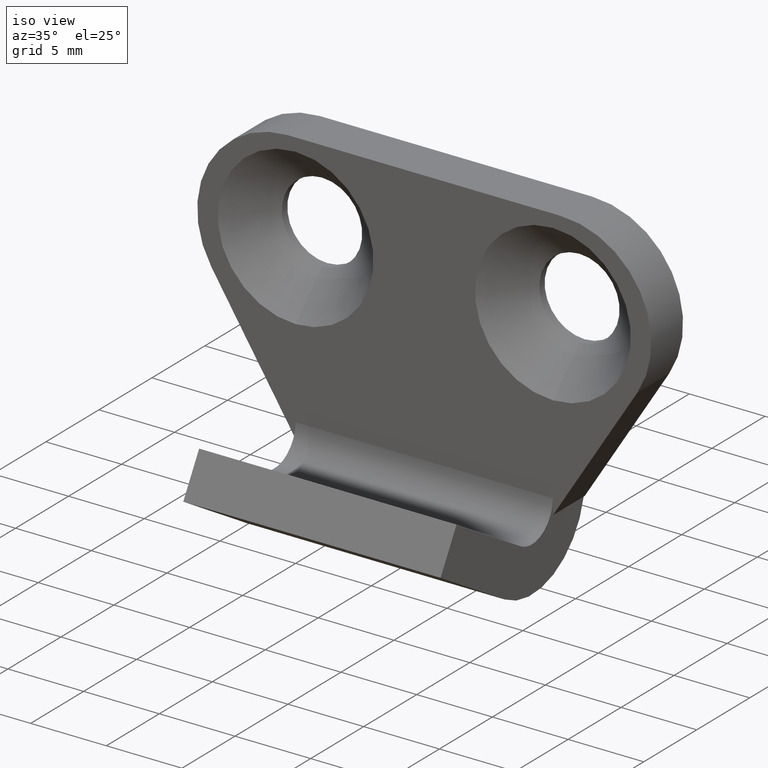
[diagram: clean part render]
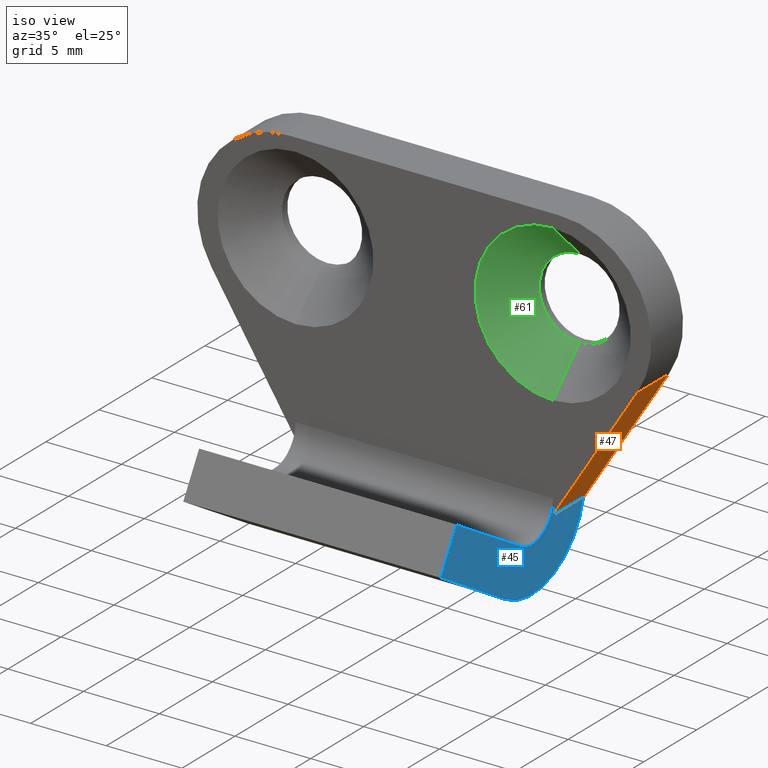
[diagram: same view with three faces highlighted in distinct colors, each labeled with its STEP entity id]
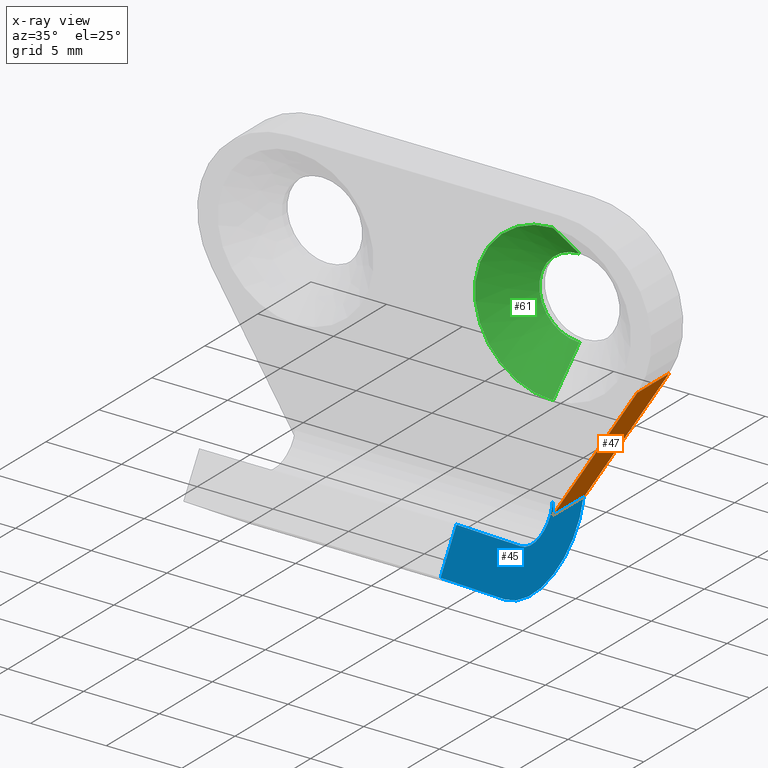
[diagram: x-ray of the same camera — body ghosted, the three highlighted faces saturated]
A machine part, iso view with three faces highlighted in distinct colors.
The next image is the same camera in x-ray (body ghosted, the three faces saturated) — at least one of them is partly hidden behind the body in this view.
Their STEP definitions:

[orange] entity #47 — the highlighted planar face has unit normal (-0.8447, 0, 0.5352).
#47=ADVANCED_FACE('',(#137),#136,.F.);
#136=PLANE('',#348);
#137=FACE_OUTER_BOUND('',#349,.T.);
#345=CARTESIAN_POINT('',(7.94316362310E+00,-3.00000000000E-01,-1.28788818178E+01));
#346=DIRECTION('',(-8.44727294833E-01,0.00000000000E+00,5.35196970623E-01));
#347=DIRECTION('',(5.35196970623E-01,0.00000000000E+00,8.44727294833E-01));
#348=AXIS2_PLACEMENT_3D('',#345,#346,#347);
#349=EDGE_LOOP('',(#498,#499,#500,#501,#502));
#498=ORIENTED_EDGE('',*,*,#588,.T.);
#499=ORIENTED_EDGE('',*,*,#600,.F.);
#500=ORIENTED_EDGE('',*,*,#604,.F.);
#501=ORIENTED_EDGE('',*,*,#605,.F.);
#502=ORIENTED_EDGE('',*,*,#606,.T.);
#588=EDGE_CURVE('',#719,#712,#720,.T.);
#600=EDGE_CURVE('',#800,#712,#801,.T.);
#604=EDGE_CURVE('',#826,#800,#827,.T.);
#605=EDGE_CURVE('',#833,#826,#834,.T.);
#606=EDGE_CURVE('',#833,#719,#840,.T.);
#712=VERTEX_POINT('',#1080);
#719=VERTEX_POINT('',#1084);
#720=LINE('',#1085,#1086);
#800=VERTEX_POINT('',#1134);
#801=LINE('',#1135,#1136);
#826=VERTEX_POINT('',#1150);
#827=LINE('',#1151,#1152);
#833=VERTEX_POINT('',#1154);
#834=LINE('',#1155,#1156);
#840=LINE('',#1158,#1159);
#1080=CARTESIAN_POINT('',(8.50000000000E+00,0.00000000000E+00,-1.20000000002E+01));
#1084=CARTESIAN_POINT('',(1.40683637690E+01,0.00000000000E+00,-3.21118182400E+00));
#1085=CARTESIAN_POINT('',(1.40683637690E+01,0.00000000000E+00,-3.21118182400E+00));
#1086=VECTOR('',#1087,1.04043260232E+01);
#1087=DIRECTION('',(-5.35196970623E-01,0.00000000000E+00,-8.44727294833E-01));
#1134=CARTESIAN_POINT('',(8.50000000000E+00,2.89897948553E+00,-1.20000000002E+01));
#1135=CARTESIAN_POINT('',(8.50000000000E+00,2.89897948553E+00,-1.20000000002E+01));
#1136=VECTOR('',#1137,2.89897948553E+00);
#1137=DIRECTION('',(0.00000000000E+00,-1.00000000000E+00,0.00000000000E+00));
#1150=CARTESIAN_POINT('',(8.50000000000E+00,3.00000000000E+00,-1.20000000002E+01));
#1151=CARTESIAN_POINT('',(8.50000000000E+00,3.00000000000E+00,-1.20000000002E+01));
#1152=VECTOR('',#1153,1.01020514466E-01);
#1153=DIRECTION('',(0.00000000000E+00,-1.00000000000E+00,0.00000000000E+00));
#1154=CARTESIAN_POINT('',(1.40683637690E+01,3.00000000000E+00,-3.21118182400E+00));
#1155=CARTESIAN_POINT('',(1.40683637690E+01,3.00000000000E+00,-3.21118182400E+00));
#1156=VECTOR('',#1157,1.04043260232E+01);
#1157=DIRECTION('',(-5.35196970623E-01,0.00000000000E+00,-8.44727294833E-01));
#1158=CARTESIAN_POINT('',(1.40683637690E+01,3.00000000000E+00,-3.21118182400E+00));
#1159=VECTOR('',#1160,3.00000000000E+00);
#1160=DIRECTION('',(0.00000000000E+00,-1.00000000000E+00,0.00000000000E+00));

[blue] entity #45 — the highlighted planar face has unit normal (1, 0, -0).
#45=ADVANCED_FACE('',(#117),#116,.T.);
#116=PLANE('',#338);
#117=FACE_OUTER_BOUND('',#339,.T.);
#335=CARTESIAN_POINT('',(8.50000000000E+00,-1.19498979486E+01,-8.12017425339E+00));
#336=DIRECTION('',(1.00000000000E+00,0.00000000000E+00,-0.00000000000E+00));
#337=DIRECTION('',(-0.00000000000E+00,0.00000000000E+00,-1.00000000000E+00));
#338=AXIS2_PLACEMENT_3D('',#335,#336,#337);
#339=EDGE_LOOP('',(#484,#485,#486,#487,#488,#489,#490));
#484=ORIENTED_EDGE('',*,*,#600,.T.);
#485=ORIENTED_EDGE('',*,*,#587,.T.);
#486=ORIENTED_EDGE('',*,*,#578,.T.);
#487=ORIENTED_EDGE('',*,*,#582,.T.);
#488=ORIENTED_EDGE('',*,*,#596,.T.);
#489=ORIENTED_EDGE('',*,*,#599,.T.);
#490=ORIENTED_EDGE('',*,*,#601,.F.);
#578=EDGE_CURVE('',#651,#644,#652,.T.);
#582=EDGE_CURVE('',#644,#671,#678,.T.);
#587=EDGE_CURVE('',#712,#651,#713,.T.);
#596=EDGE_CURVE('',#671,#767,#774,.T.);
#599=EDGE_CURVE('',#767,#787,#794,.T.);
#600=EDGE_CURVE('',#800,#712,#801,.T.);
#601=EDGE_CURVE('',#800,#787,#807,.T.);
#644=VERTEX_POINT('',#1040);
#651=VERTEX_POINT('',#1044);
#652=CIRCLE('',#1048,2.00000000000E+00);
#671=VERTEX_POINT('',#1056);
#678=LINE('',#1060,#1061);
#712=VERTEX_POINT('',#1080);
#713=LINE('',#1081,#1082);
#767=VERTEX_POINT('',#1116);
#774=LINE('',#1120,#1121);
#787=VERTEX_POINT('',#1127);
#794=LINE('',#1131,#1132);
#800=VERTEX_POINT('',#1134);
#801=LINE('',#1135,#1136);
#807=CIRCLE('',#1141,5.00000000000E+00);
#1040=CARTESIAN_POINT('',(8.50000000000E+00,-3.02324011772E+00,-1.27184235978E+01));
#1044=CARTESIAN_POINT('',(8.50000000000E+00,0.00000000000E+00,-1.10000000000E+01));
#1045=CARTESIAN_POINT('',(8.50000000000E+00,-2.00000000000E+00,-1.10000000000E+01));
#1046=DIRECTION('',(-1.00000000000E+00,-0.00000000000E+00,0.00000000000E+00));
#1047=DIRECTION('',(0.00000000000E+00,-0.00000000000E+00,1.00000000000E+00));
#1048=AXIS2_PLACEMENT_3D('',#1045,#1046,#1047);
#1056=CARTESIAN_POINT('',(8.50000000000E+00,-9.10000000000E+00,-9.10000000000E+00));
#1060=CARTESIAN_POINT('',(8.50000000000E+00,-3.02324011772E+00,-1.27184235978E+01));
#1061=VECTOR('',#1062,7.07248188403E+00);
#1062=DIRECTION('',(0.00000000000E+00,-8.59211798901E-01,5.11620058861E-01));
#1080=CARTESIAN_POINT('',(8.50000000000E+00,0.00000000000E+00,-1.20000000002E+01));
#1081=CARTESIAN_POINT('',(8.50000000000E+00,0.00000000000E+00,-1.20000000002E+01));
#1082=VECTOR('',#1083,1.00000000016E+00);
#1083=DIRECTION('',(0.00000000000E+00,0.00000000000E+00,1.00000000000E+00));
#1116=CARTESIAN_POINT('',(8.50000000000E+00,-1.06000000000E+01,-1.16980762114E+01));
#1120=CARTESIAN_POINT('',(8.50000000000E+00,-9.10000000000E+00,-9.10000000000E+00));
#1121=VECTOR('',#1122,3.00000000000E+00);
#1122=DIRECTION('',(0.00000000000E+00,-5.00000000000E-01,-8.66025403784E-01));
#1127=CARTESIAN_POINT('',(8.50000000000E+00,-4.55826657372E+00,-1.52959599786E+01));
#1131=CARTESIAN_POINT('',(8.50000000000E+00,-1.06000000000E+01,-1.16980762114E+01));
#1132=VECTOR('',#1133,7.03187815572E+00);
#1133=DIRECTION('',(0.00000000000E+00,8.59191995721E-01,-5.11653314744E-01));
#1134=CARTESIAN_POINT('',(8.50000000000E+00,2.89897948553E+00,-1.20000000002E+01));
#1135=CARTESIAN_POINT('',(8.50000000000E+00,2.89897948553E+00,-1.20000000002E+01));
#1136=VECTOR('',#1137,2.89897948553E+00);
#1137=DIRECTION('',(0.00000000000E+00,-1.00000000000E+00,0.00000000000E+00));
#1138=CARTESIAN_POINT('',(8.50000000000E+00,-2.00000000000E+00,-1.10000000000E+01));
#1139=DIRECTION('',(-1.00000000000E+00,-0.00000000000E+00,0.00000000000E+00));
#1140=DIRECTION('',(0.00000000000E+00,-0.00000000000E+00,1.00000000000E+00));
#1141=AXIS2_PLACEMENT_3D('',#1138,#1139,#1140);

[green] entity #61 — the highlighted face is a freeform B-spline surface patch.
#61=ADVANCED_FACE('',(#279),#278,.F.);
#278=( BOUNDED_SURFACE() B_SPLINE_SURFACE( 2,1,((#435,#436),(#437,#438),(#439,#440),(#441,#442),(#443,#444)), .UNSPECIFIED.,.F.,.F.,.F.) B_SPLINE_SURFACE_WITH_KNOTS((3,2,3),(2,2),(0.00000000000E+00,5.00000000000E-01,1.00000000000E+00),(0.00000000000E+00,1.00000000000E+00), .UNSPECIFIED. ) GEOMETRIC_REPRESENTATION_ITEM() RATIONAL_B_SPLINE_SURFACE(((1.00000000000E+00,1.00000000000E+00),(7.07106781187E-01,7.07106781187E-01),(1.00000000000E+00,1.00000000000E+00),(7.07106781187E-01,7.07106781187E-01),(1.00000000000E+00,1.00000000000E+00))) REPRESENTATION_ITEM('') SURFACE() );
#279=FACE_OUTER_BOUND('',#445,.T.);
#435=CARTESIAN_POINT('',(8.50000000000E+00,2.49999999995E+00,2.65000000006E+00));
#436=CARTESIAN_POINT('',(8.50000000000E+00,0.00000000000E+00,5.15000000000E+00));
#437=CARTESIAN_POINT('',(5.84999999994E+00,2.49999999995E+00,2.65000000006E+00));
#438=CARTESIAN_POINT('',(3.35000000000E+00,0.00000000000E+00,5.15000000000E+00));
#439=CARTESIAN_POINT('',(5.84999999994E+00,2.49999999995E+00,1.62265700891E-16));
#440=CARTESIAN_POINT('',(3.35000000000E+00,0.00000000000E+00,-1.46101028862E-15));
#441=CARTESIAN_POINT('',(5.84999999994E+00,2.49999999995E+00,-2.65000000006E+00));
#442=CARTESIAN_POINT('',(3.35000000000E+00,0.00000000000E+00,-5.15000000000E+00));
#443=CARTESIAN_POINT('',(8.50000000000E+00,2.49999999995E+00,-2.65000000006E+00));
#444=CARTESIAN_POINT('',(8.50000000000E+00,0.00000000000E+00,-5.15000000000E+00));
#445=EDGE_LOOP('',(#564,#565,#566,#567));
#564=ORIENTED_EDGE('',*,*,#593,.F.);
#565=ORIENTED_EDGE('',*,*,#631,.F.);
#566=ORIENTED_EDGE('',*,*,#633,.T.);
#567=ORIENTED_EDGE('',*,*,#632,.T.);
#593=EDGE_CURVE('',#747,#746,#754,.T.);
#631=EDGE_CURVE('',#997,#747,#1004,.T.);
#632=EDGE_CURVE('',#996,#746,#1010,.T.);
#633=EDGE_CURVE('',#997,#996,#1016,.T.);
#746=VERTEX_POINT('',#1102);
#747=VERTEX_POINT('',#1103);
#754=CIRCLE('',#1111,5.15000000000E+00);
#996=VERTEX_POINT('',#1248);
#997=VERTEX_POINT('',#1249);
#1004=(BOUNDED_CURVE() B_SPLINE_CURVE(1,(#1254,#1255),.UNSPECIFIED.,.F.,.F.) B_SPLINE_CURVE_WITH_KNOTS((2,2),(0.00000000000E+00,1.00000000000E+00),.UNSPECIFIED.) CURVE() GEOMETRIC_REPRESENTATION_ITEM() RATIONAL_B_SPLINE_CURVE((1.00000000000E+00,1.00000000000E+00)) REPRESENTATION_ITEM('') );
#1010=(BOUNDED_CURVE() B_SPLINE_CURVE(1,(#1256,#1257),.UNSPECIFIED.,.F.,.F.) B_SPLINE_CURVE_WITH_KNOTS((2,2),(0.00000000000E+00,1.00000000000E+00),.UNSPECIFIED.) CURVE() GEOMETRIC_REPRESENTATION_ITEM() RATIONAL_B_SPLINE_CURVE((7.50000000000E-01,7.50000000000E-01)) REPRESENTATION_ITEM('') );
#1016=CIRCLE('',#1261,2.65000000006E+00);
#1102=CARTESIAN_POINT('',(8.50000000000E+00,0.00000000000E+00,5.15000000000E+00));
#1103=CARTESIAN_POINT('',(8.50000000000E+00,0.00000000000E+00,-5.15000000000E+00));
#1108=CARTESIAN_POINT('',(8.50000000000E+00,0.00000000000E+00,0.00000000000E+00));
#1109=DIRECTION('',(0.00000000000E+00,1.00000000000E+00,-0.00000000000E+00));
#1110=DIRECTION('',(-1.22460635382E-16,0.00000000000E+00,1.00000000000E+00));
#1111=AXIS2_PLACEMENT_3D('',#1108,#1109,#1110);
#1248=CARTESIAN_POINT('',(8.50000000000E+00,2.49999999995E+00,2.65000000006E+00));
#1249=CARTESIAN_POINT('',(8.50000000000E+00,2.49999999995E+00,-2.65000000006E+00));
#1254=CARTESIAN_POINT('',(8.50000000000E+00,2.49999999995E+00,-2.65000000006E+00));
#1255=CARTESIAN_POINT('',(8.50000000000E+00,0.00000000000E+00,-5.15000000000E+00));
#1256=CARTESIAN_POINT('',(8.50000000000E+00,2.49999999995E+00,2.65000000006E+00));
#1257=CARTESIAN_POINT('',(8.50000000000E+00,0.00000000000E+00,5.15000000000E+00));
#1258=CARTESIAN_POINT('',(8.50000000000E+00,2.49999999995E+00,0.00000000000E+00));
#1259=DIRECTION('',(0.00000000000E+00,1.00000000000E+00,-0.00000000000E+00));
#1260=DIRECTION('',(-1.22460635382E-16,0.00000000000E+00,1.00000000000E+00));
#1261=AXIS2_PLACEMENT_3D('',#1258,#1259,#1260);